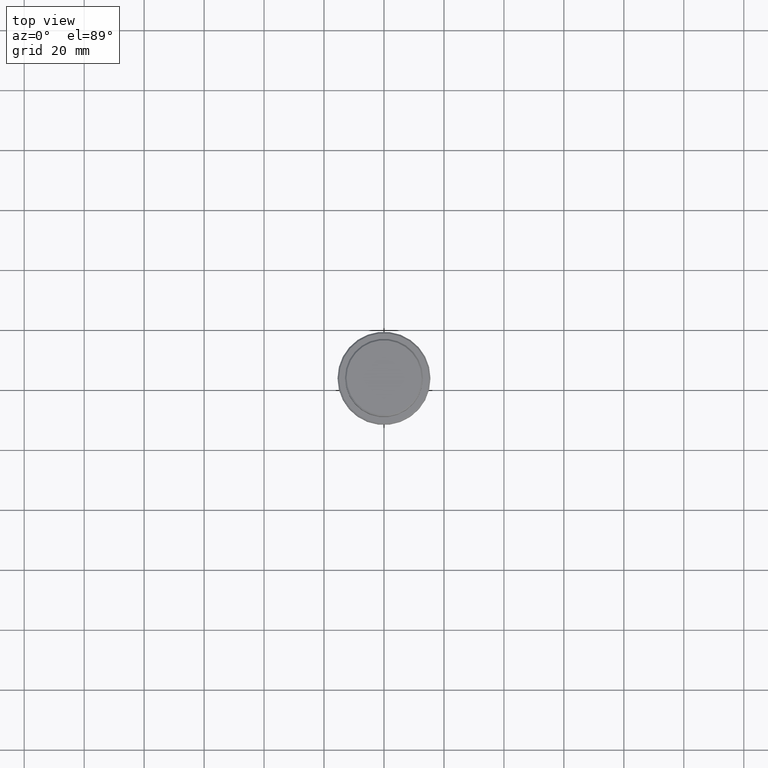
[diagram: clean part render]
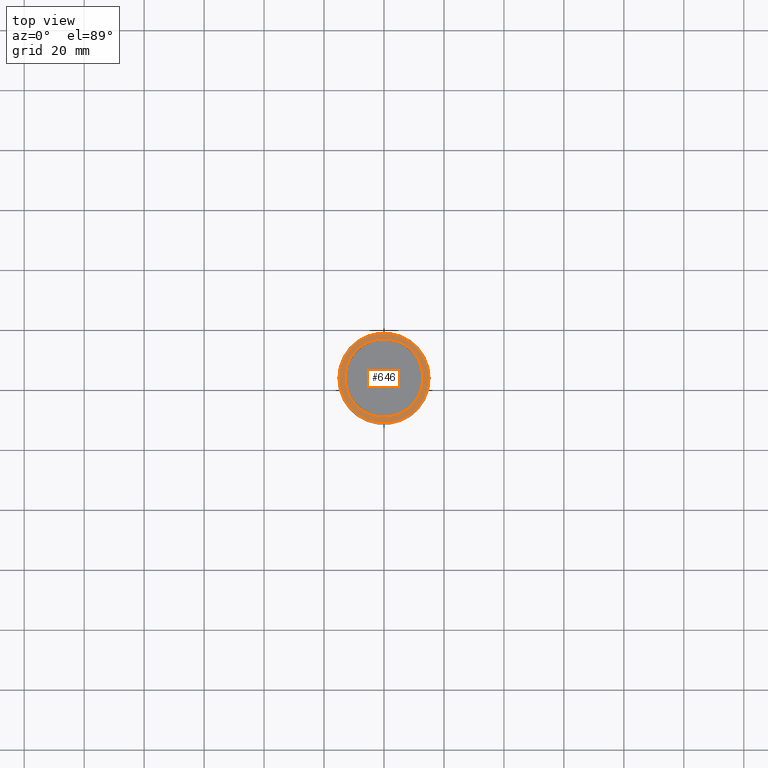
[diagram: same view with one face highlighted and labeled with its STEP entity id]
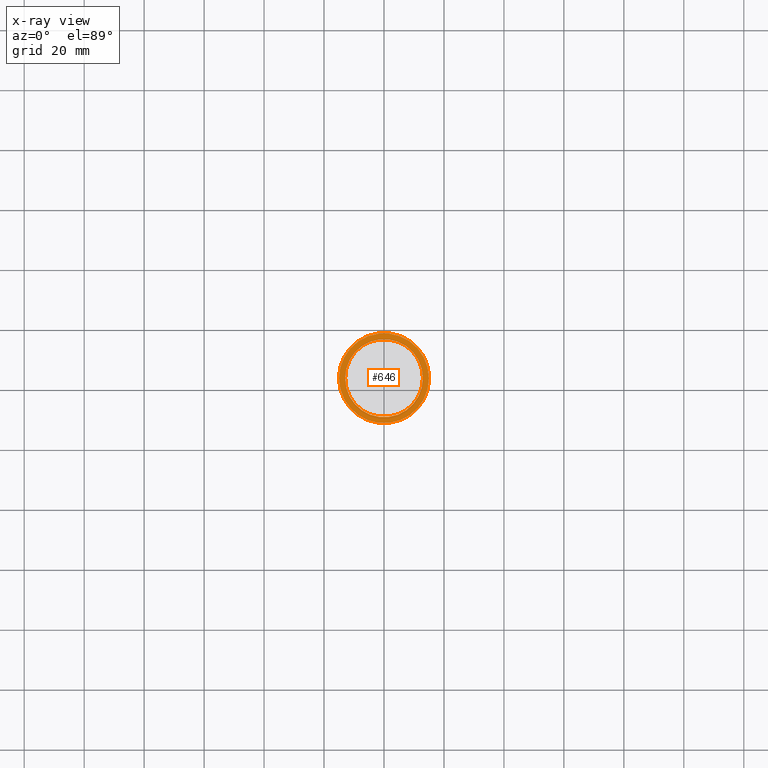
[diagram: x-ray of the same camera — body ghosted, the highlighted face saturated]
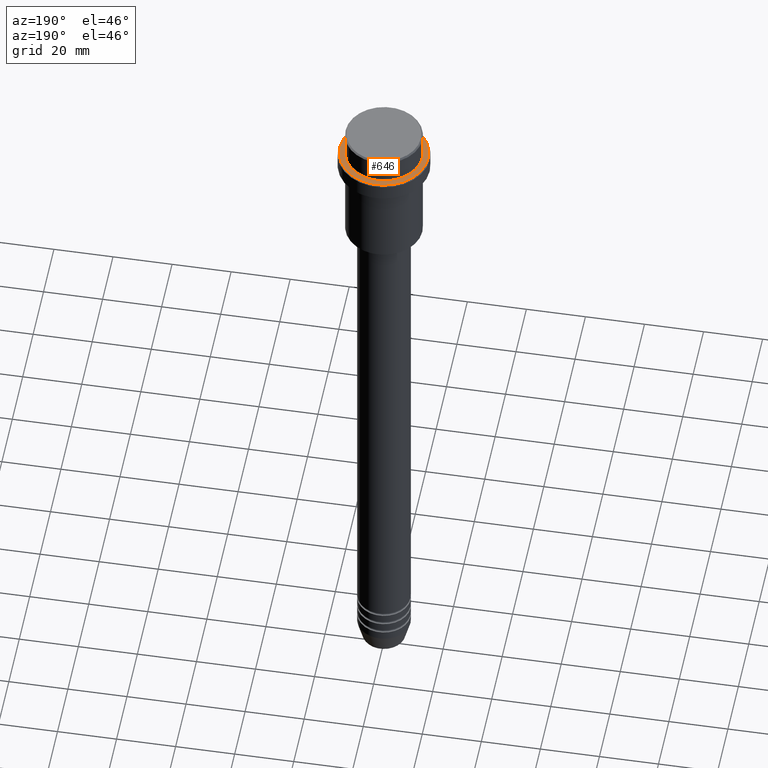
[diagram: same view with one face highlighted and labeled with its STEP entity id]
A machine part, top view. The second image highlights one B-rep face of the part: STEP entity #646.
The next image is the same camera in x-ray: the body ghosted, the highlighted face saturated — about 0% of this face is hidden behind the body in this view.
A second angle (auxiliary view) of the same face is appended — the face is thin or edge-on in the first view.
In plain terms, the highlighted planar face has unit normal (0, -0, 1).
Its self-contained STEP definition (entity closure, byte-faithful):
#65 = DIRECTION ( 'NONE',  ( 0.000000000000000000, -0.000000000000000000, 1.000000000000000000 ) ) ;
#137 = EDGE_CURVE ( 'NONE', #327, #1223, #356, .T. ) ;
#182 = PLANE ( 'NONE',  #194 ) ;
#194 = AXIS2_PLACEMENT_3D ( 'NONE', #628, #65, #1390 ) ;
#206 = EDGE_LOOP ( 'NONE', ( #1408, #962 ) ) ;
#211 = DIRECTION ( 'NONE',  ( 1.000000000000000000, 0.000000000000000000, 0.000000000000000000 ) ) ;
#233 = CARTESIAN_POINT ( 'NONE',  ( 0.000000000000000000, 0.000000000000000000, -9.000000000000001776 ) ) ;
#327 = VERTEX_POINT ( 'NONE', #1160 ) ;
#340 = FACE_OUTER_BOUND ( 'NONE', #527, .T. ) ;
#342 = DIRECTION ( 'NONE',  ( -0.000000000000000000, -0.000000000000000000, 1.000000000000000000 ) ) ;
#356 = CIRCLE ( 'NONE', #607, 12.99999999999999467 ) ;
#360 = AXIS2_PLACEMENT_3D ( 'NONE', #233, #1190, #645 ) ;
#402 = VERTEX_POINT ( 'NONE', #967 ) ;
#417 = CARTESIAN_POINT ( 'NONE',  ( -12.99999999999999467, 1.592040838891558504E-15, -9.000000000000001776 ) ) ;
#527 = EDGE_LOOP ( 'NONE', ( #822, #693 ) ) ;
#555 = DIRECTION ( 'NONE',  ( 1.000000000000000000, 0.000000000000000000, 0.000000000000000000 ) ) ;
#579 = DIRECTION ( 'NONE',  ( 1.000000000000000000, 0.000000000000000000, 0.000000000000000000 ) ) ;
#607 = AXIS2_PLACEMENT_3D ( 'NONE', #1331, #1206, #579 ) ;
#628 = CARTESIAN_POINT ( 'NONE',  ( 0.000000000000000000, 12.49999999999999289, -9.000000000000001776 ) ) ;
#645 = DIRECTION ( 'NONE',  ( 1.000000000000000000, 0.000000000000000000, 0.000000000000000000 ) ) ;
#646 = ADVANCED_FACE ( 'NONE', ( #340, #1143 ), #182, .T. ) ;
#657 = CIRCLE ( 'NONE', #929, 14.99999999999998579 ) ;
#693 = ORIENTED_EDGE ( 'NONE', *, *, #925, .T. ) ;
#761 = CARTESIAN_POINT ( 'NONE',  ( 0.000000000000000000, 0.000000000000000000, -9.000000000000001776 ) ) ;
#771 = DIRECTION ( 'NONE',  ( -0.000000000000000000, -0.000000000000000000, 1.000000000000000000 ) ) ;
#822 = ORIENTED_EDGE ( 'NONE', *, *, #1211, .T. ) ;
#864 = CIRCLE ( 'NONE', #1087, 14.99999999999998579 ) ;
#905 = CARTESIAN_POINT ( 'NONE',  ( -14.99999999999998579, 0.000000000000000000, -9.000000000000001776 ) ) ;
#925 = EDGE_CURVE ( 'NONE', #402, #1051, #657, .T. ) ;
#929 = AXIS2_PLACEMENT_3D ( 'NONE', #1417, #771, #555 ) ;
#962 = ORIENTED_EDGE ( 'NONE', *, *, #1236, .T. ) ;
#967 = CARTESIAN_POINT ( 'NONE',  ( 14.99999999999998579, 1.867586368699712587E-15, -9.000000000000001776 ) ) ;
#1051 = VERTEX_POINT ( 'NONE', #905 ) ;
#1087 = AXIS2_PLACEMENT_3D ( 'NONE', #761, #342, #211 ) ;
#1143 = FACE_BOUND ( 'NONE', #206, .T. ) ;
#1160 = CARTESIAN_POINT ( 'NONE',  ( 12.99999999999999467, 0.000000000000000000, -9.000000000000001776 ) ) ;
#1177 = CIRCLE ( 'NONE', #360, 12.99999999999999467 ) ;
#1190 = DIRECTION ( 'NONE',  ( 0.000000000000000000, 0.000000000000000000, -1.000000000000000000 ) ) ;
#1206 = DIRECTION ( 'NONE',  ( 0.000000000000000000, 0.000000000000000000, -1.000000000000000000 ) ) ;
#1211 = EDGE_CURVE ( 'NONE', #1051, #402, #864, .T. ) ;
#1223 = VERTEX_POINT ( 'NONE', #417 ) ;
#1236 = EDGE_CURVE ( 'NONE', #1223, #327, #1177, .T. ) ;
#1331 = CARTESIAN_POINT ( 'NONE',  ( 0.000000000000000000, 0.000000000000000000, -9.000000000000001776 ) ) ;
#1390 = DIRECTION ( 'NONE',  ( 1.000000000000000000, 0.000000000000000000, 0.000000000000000000 ) ) ;
#1408 = ORIENTED_EDGE ( 'NONE', *, *, #137, .T. ) ;
#1417 = CARTESIAN_POINT ( 'NONE',  ( 0.000000000000000000, 0.000000000000000000, -9.000000000000001776 ) ) ;